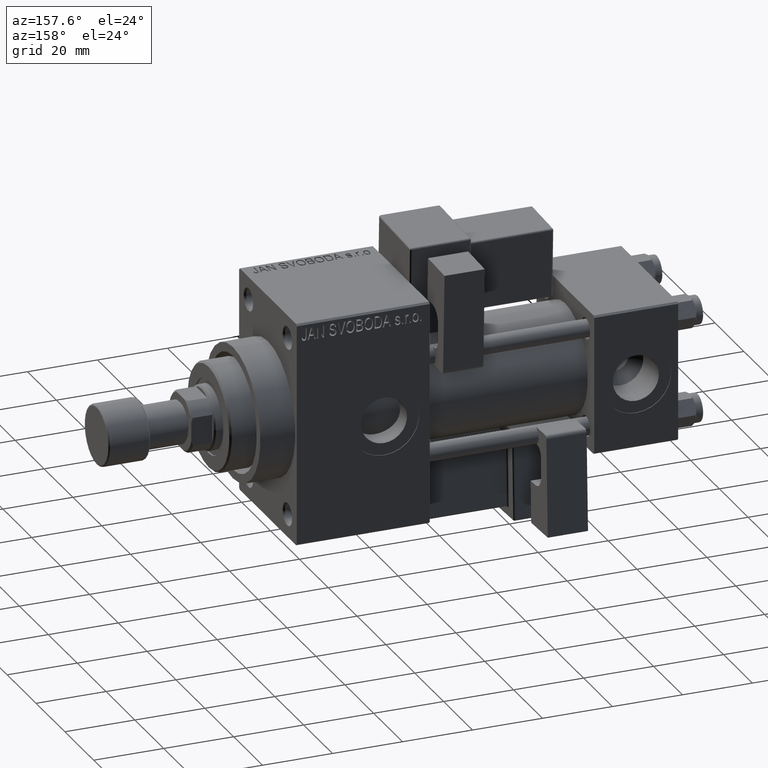
[diagram: clean part render]
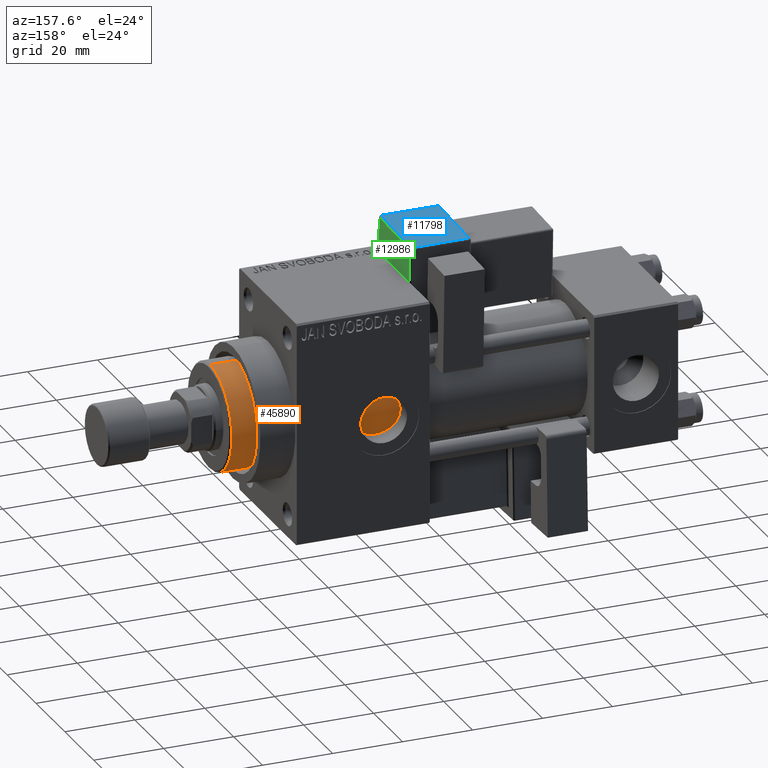
[diagram: same view with three faces highlighted in distinct colors, each labeled with its STEP entity id]
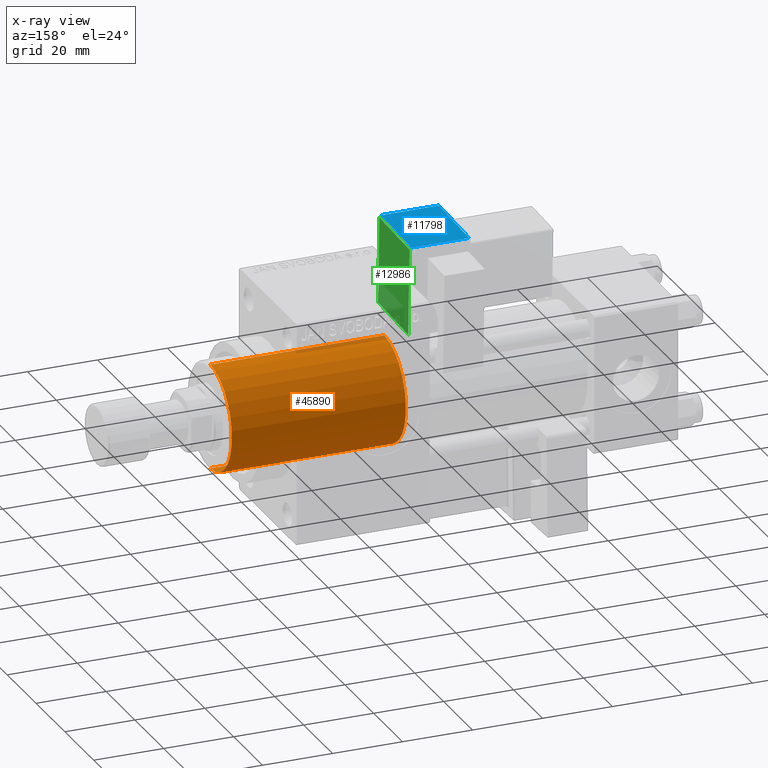
[diagram: x-ray of the same camera — body ghosted, the three highlighted faces saturated]
A machine part, auxiliary view with three faces highlighted in distinct colors.
The next image is the same camera in x-ray (body ghosted, the three faces saturated) — at least one of them is partly hidden behind the body in this view.
Their STEP definitions:

[orange] entity #45890 — the highlighted cylindrical surface (partial cylindrical patch) has radius 15 mm, axis along (-1, 0, 0).
#619 = CARTESIAN_POINT ( 'NONE',  ( 0.000000000000000000, 0.000000000000000000, 0.000000000000000000 ) ) ;
#794 = EDGE_LOOP ( 'NONE', ( #30956, #16100, #47588, #30703 ) ) ;
#835 = CARTESIAN_POINT ( 'NONE',  ( -15.00000000000000000, 0.000000000000000000, 0.000000000000000000 ) ) ;
#1419 = CARTESIAN_POINT ( 'NONE',  ( 15.00000000000000000, 1.836970198721029589E-15, 43.25999999999999801 ) ) ;
#2024 = CARTESIAN_POINT ( 'NONE',  ( -15.00000000000000000, 0.000000000000000000, 49.75999999999998380 ) ) ;
#2192 = EDGE_CURVE ( 'NONE', #5857, #36238, #26142, .T. ) ;
#2491 = EDGE_CURVE ( 'NONE', #36238, #31698, #16350, .T. ) ;
#3105 = CYLINDRICAL_SURFACE ( 'NONE', #7246, 15.00000000000000000 ) ;
#4895 = DIRECTION ( 'NONE',  ( -0.000000000000000000, -0.000000000000000000, -1.000000000000000000 ) ) ;
#5857 = VERTEX_POINT ( 'NONE', #47511 ) ;
#7246 = AXIS2_PLACEMENT_3D ( 'NONE', #30924, #46802, #31178 ) ;
#7898 = VECTOR ( 'NONE', #4895, 1000.000000000000000 ) ;
#10251 = VERTEX_POINT ( 'NONE', #28230 ) ;
#10414 = DIRECTION ( 'NONE',  ( 0.000000000000000000, 0.000000000000000000, -1.000000000000000000 ) ) ;
#13634 = LINE ( 'NONE', #1419, #30873 ) ;
#16100 = ORIENTED_EDGE ( 'NONE', *, *, #2192, .T. ) ;
#16350 = LINE ( 'NONE', #20255, #7898 ) ;
#18633 = CIRCLE ( 'NONE', #33595, 15.00000000000000000 ) ;
#19050 = EDGE_CURVE ( 'NONE', #5857, #10251, #13634, .T. ) ;
#20255 = CARTESIAN_POINT ( 'NONE',  ( -15.00000000000000000, 0.000000000000000000, 43.25999999999999801 ) ) ;
#26142 = CIRCLE ( 'NONE', #48572, 15.00000000000000000 ) ;
#28230 = CARTESIAN_POINT ( 'NONE',  ( 15.00000000000000000, 1.836970198721029589E-15, 0.000000000000000000 ) ) ;
#30167 = CARTESIAN_POINT ( 'NONE',  ( 0.000000000000000000, 0.000000000000000000, 49.75999999999998380 ) ) ;
#30703 = ORIENTED_EDGE ( 'NONE', *, *, #40164, .T. ) ;
#30873 = VECTOR ( 'NONE', #45390, 1000.000000000000000 ) ;
#30924 = CARTESIAN_POINT ( 'NONE',  ( 0.000000000000000000, 0.000000000000000000, 43.25999999999999801 ) ) ;
#30956 = ORIENTED_EDGE ( 'NONE', *, *, #19050, .F. ) ;
#31178 = DIRECTION ( 'NONE',  ( -1.000000000000000000, 0.000000000000000000, 0.000000000000000000 ) ) ;
#31698 = VERTEX_POINT ( 'NONE', #835 ) ;
#33595 = AXIS2_PLACEMENT_3D ( 'NONE', #619, #39915, #47995 ) ;
#36238 = VERTEX_POINT ( 'NONE', #2024 ) ;
#38747 = FACE_OUTER_BOUND ( 'NONE', #794, .T. ) ;
#39915 = DIRECTION ( 'NONE',  ( 0.000000000000000000, 0.000000000000000000, 1.000000000000000000 ) ) ;
#40164 = EDGE_CURVE ( 'NONE', #31698, #10251, #18633, .T. ) ;
#45390 = DIRECTION ( 'NONE',  ( -0.000000000000000000, -0.000000000000000000, -1.000000000000000000 ) ) ;
#45890 = ADVANCED_FACE ( 'NONE', ( #38747 ), #3105, .T. ) ;
#46321 = DIRECTION ( 'NONE',  ( 1.000000000000000000, 0.000000000000000000, 0.000000000000000000 ) ) ;
#46802 = DIRECTION ( 'NONE',  ( -0.000000000000000000, -0.000000000000000000, -1.000000000000000000 ) ) ;
#47511 = CARTESIAN_POINT ( 'NONE',  ( 15.00000000000000000, 1.836970198721029589E-15, 49.75999999999998380 ) ) ;
#47588 = ORIENTED_EDGE ( 'NONE', *, *, #2491, .T. ) ;
#47995 = DIRECTION ( 'NONE',  ( 1.000000000000000000, 0.000000000000000000, 0.000000000000000000 ) ) ;
#48572 = AXIS2_PLACEMENT_3D ( 'NONE', #30167, #10414, #46321 ) ;

[blue] entity #11798 — the highlighted planar face has unit normal (0, -0.0353, -0.9994).
#1464 = AXIS2_PLACEMENT_3D ( 'NONE', #29042, #24362, #32186 ) ;
#2788 = VECTOR ( 'NONE', #32687, 1000.000000000000000 ) ;
#4455 = CARTESIAN_POINT ( 'NONE',  ( -8.250000000000003553, -11.25000000000000000, -1.000000000000000222 ) ) ;
#4704 = VECTOR ( 'NONE', #8069, 1000.000000000000000 ) ;
#4925 = CARTESIAN_POINT ( 'NONE',  ( 8.750000000000003553, -11.25000000000000000, -1.000000000000000222 ) ) ;
#8069 = DIRECTION ( 'NONE',  ( 1.000000000000000000, -0.000000000000000000, 0.000000000000000000 ) ) ;
#8523 = VERTEX_POINT ( 'NONE', #4455 ) ;
#9250 = LINE ( 'NONE', #20956, #36318 ) ;
#9798 = VECTOR ( 'NONE', #50897, 1000.000000000000000 ) ;
#11798 = ADVANCED_FACE ( 'NONE', ( #28781 ), #44668, .F. ) ;
#12934 = EDGE_CURVE ( 'NONE', #35066, #30786, #43100, .T. ) ;
#13682 = LINE ( 'NONE', #36599, #2788 ) ;
#15715 = CARTESIAN_POINT ( 'NONE',  ( -8.250000000000003553, -32.25000000000000000, -1.000000000000000222 ) ) ;
#16381 = LINE ( 'NONE', #4925, #4704 ) ;
#20956 = CARTESIAN_POINT ( 'NONE',  ( 8.750000000000003553, -32.25000000000000000, -1.000000000000000222 ) ) ;
#21480 = DIRECTION ( 'NONE',  ( -1.000000000000000000, -0.000000000000000000, 0.000000000000000000 ) ) ;
#23547 = CARTESIAN_POINT ( 'NONE',  ( 8.250000000000003553, -32.75000000000000000, -1.000000000000000222 ) ) ;
#24362 = DIRECTION ( 'NONE',  ( 0.000000000000000000, 0.000000000000000000, 1.000000000000000000 ) ) ;
#25825 = EDGE_CURVE ( 'NONE', #35237, #8523, #13682, .T. ) ;
#25849 = ORIENTED_EDGE ( 'NONE', *, *, #12934, .T. ) ;
#28781 = FACE_OUTER_BOUND ( 'NONE', #28833, .T. ) ;
#28833 = EDGE_LOOP ( 'NONE', ( #41120, #25849, #29124, #36472 ) ) ;
#29042 = CARTESIAN_POINT ( 'NONE',  ( 8.750000000000003553, -32.75000000000000000, -1.000000000000000222 ) ) ;
#29124 = ORIENTED_EDGE ( 'NONE', *, *, #37723, .T. ) ;
#30786 = VERTEX_POINT ( 'NONE', #47672 ) ;
#32186 = DIRECTION ( 'NONE',  ( 1.000000000000000000, 0.000000000000000000, -0.000000000000000000 ) ) ;
#32363 = EDGE_CURVE ( 'NONE', #8523, #35066, #16381, .T. ) ;
#32687 = DIRECTION ( 'NONE',  ( -0.000000000000000000, 1.000000000000000000, 0.000000000000000000 ) ) ;
#35066 = VERTEX_POINT ( 'NONE', #38702 ) ;
#35237 = VERTEX_POINT ( 'NONE', #15715 ) ;
#36318 = VECTOR ( 'NONE', #21480, 1000.000000000000000 ) ;
#36472 = ORIENTED_EDGE ( 'NONE', *, *, #25825, .T. ) ;
#36599 = CARTESIAN_POINT ( 'NONE',  ( -8.250000000000003553, -32.75000000000000000, -1.000000000000000222 ) ) ;
#37723 = EDGE_CURVE ( 'NONE', #30786, #35237, #9250, .T. ) ;
#38702 = CARTESIAN_POINT ( 'NONE',  ( 8.250000000000003553, -11.25000000000000000, -1.000000000000000222 ) ) ;
#41120 = ORIENTED_EDGE ( 'NONE', *, *, #32363, .T. ) ;
#43100 = LINE ( 'NONE', #23547, #9798 ) ;
#44668 = PLANE ( 'NONE',  #1464 ) ;
#47672 = CARTESIAN_POINT ( 'NONE',  ( 8.250000000000003553, -32.25000000000000000, -1.000000000000000222 ) ) ;
#50897 = DIRECTION ( 'NONE',  ( -0.000000000000000000, -1.000000000000000000, -0.000000000000000000 ) ) ;

[green] entity #12986 — the highlighted planar face has unit normal (-1, 0, 0).
#115 = PLANE ( 'NONE',  #47328 ) ;
#1585 = ORIENTED_EDGE ( 'NONE', *, *, #6846, .T. ) ;
#4095 = CARTESIAN_POINT ( 'NONE',  ( -8.750000000000003553, -11.25000000000000000, -1.000000000000000888 ) ) ;
#4278 = DIRECTION ( 'NONE',  ( 1.000000000000000000, 0.000000000000000000, -1.334402673828313093E-16 ) ) ;
#6846 = EDGE_CURVE ( 'NONE', #15489, #26620, #47216, .T. ) ;
#7414 = DIRECTION ( 'NONE',  ( 0.000000000000000000, 1.000000000000000000, 0.000000000000000000 ) ) ;
#7517 = LINE ( 'NONE', #31176, #22979 ) ;
#7905 = CARTESIAN_POINT ( 'NONE',  ( -8.750000000000000000, -32.75000000000000000, 24.50000000000000000 ) ) ;
#8195 = CARTESIAN_POINT ( 'NONE',  ( -8.750000000000000000, -32.75000000000000000, 25.00000000000000000 ) ) ;
#9857 = DIRECTION ( 'NONE',  ( -0.000000000000000000, -1.000000000000000000, -0.000000000000000000 ) ) ;
#9891 = EDGE_CURVE ( 'NONE', #38807, #15489, #7517, .T. ) ;
#12011 = VECTOR ( 'NONE', #9857, 1000.000000000000000 ) ;
#12455 = ORIENTED_EDGE ( 'NONE', *, *, #28790, .T. ) ;
#12663 = DIRECTION ( 'NONE',  ( -1.334402673828313093E-16, 0.000000000000000000, -1.000000000000000000 ) ) ;
#12986 = ADVANCED_FACE ( 'NONE', ( #15992 ), #115, .F. ) ;
#14003 = LINE ( 'NONE', #34300, #12011 ) ;
#14510 = CARTESIAN_POINT ( 'NONE',  ( -8.750000000000003553, -32.25000000000000000, -0.5000000000000001110 ) ) ;
#15489 = VERTEX_POINT ( 'NONE', #19822 ) ;
#15992 = FACE_OUTER_BOUND ( 'NONE', #45238, .T. ) ;
#16099 = CARTESIAN_POINT ( 'NONE',  ( -8.750000000000003553, -11.25000000000000000, -0.5000000000000001110 ) ) ;
#16249 = DIRECTION ( 'NONE',  ( -1.334402673828313093E-16, 0.000000000000000000, -1.000000000000000000 ) ) ;
#19822 = CARTESIAN_POINT ( 'NONE',  ( -8.750000000000000000, -32.25000000000000000, 24.50000000000000000 ) ) ;
#22979 = VECTOR ( 'NONE', #23370, 1000.000000000000000 ) ;
#23370 = DIRECTION ( 'NONE',  ( 1.334402673828313093E-16, -0.000000000000000000, 1.000000000000000000 ) ) ;
#23573 = VECTOR ( 'NONE', #12663, 1000.000000000000000 ) ;
#26620 = VERTEX_POINT ( 'NONE', #29230 ) ;
#27086 = EDGE_CURVE ( 'NONE', #26620, #39468, #40253, .T. ) ;
#28407 = ORIENTED_EDGE ( 'NONE', *, *, #27086, .T. ) ;
#28790 = EDGE_CURVE ( 'NONE', #39468, #38807, #14003, .T. ) ;
#29230 = CARTESIAN_POINT ( 'NONE',  ( -8.750000000000000000, -11.25000000000000000, 24.50000000000000000 ) ) ;
#30720 = ORIENTED_EDGE ( 'NONE', *, *, #9891, .T. ) ;
#31176 = CARTESIAN_POINT ( 'NONE',  ( -8.750000000000000000, -32.25000000000000000, 25.00000000000000000 ) ) ;
#34300 = CARTESIAN_POINT ( 'NONE',  ( -8.750000000000003553, -32.75000000000000000, -0.5000000000000004441 ) ) ;
#38807 = VERTEX_POINT ( 'NONE', #14510 ) ;
#39468 = VERTEX_POINT ( 'NONE', #16099 ) ;
#40253 = LINE ( 'NONE', #4095, #23573 ) ;
#42004 = VECTOR ( 'NONE', #7414, 1000.000000000000000 ) ;
#45238 = EDGE_LOOP ( 'NONE', ( #30720, #1585, #28407, #12455 ) ) ;
#47216 = LINE ( 'NONE', #7905, #42004 ) ;
#47328 = AXIS2_PLACEMENT_3D ( 'NONE', #8195, #4278, #16249 ) ;